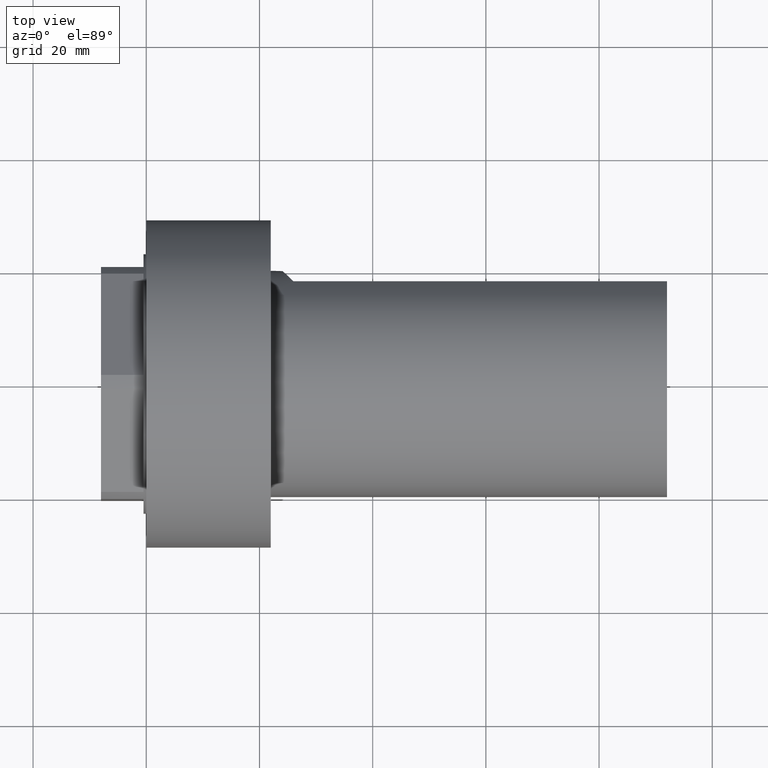
[diagram: clean part render]
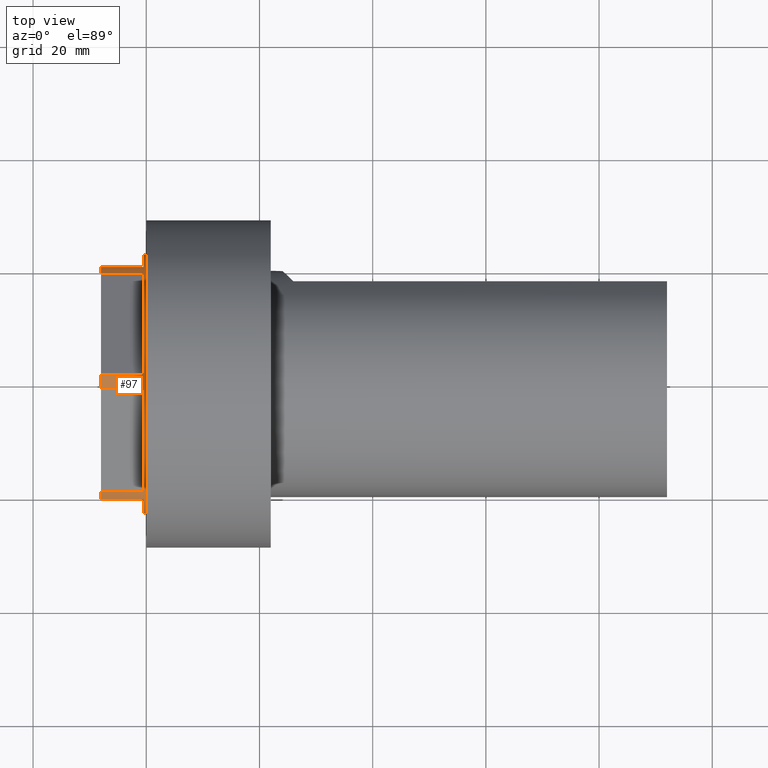
[diagram: same view with one face highlighted and labeled with its STEP entity id]
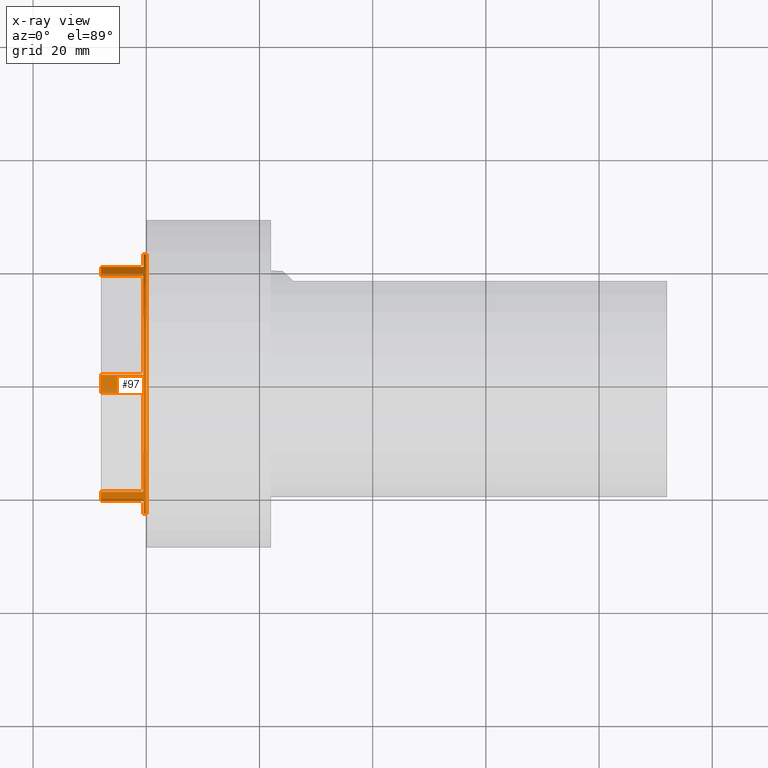
[diagram: x-ray of the same camera — body ghosted, the highlighted face saturated]
A machine part, top view. The second image highlights one B-rep face of the part: STEP entity #97.
The next image is the same camera in x-ray: the body ghosted, the highlighted face saturated — about 14% of this face is hidden behind the body in this view.
In plain terms, the highlighted cylindrical surface (bore or boss wall) has radius 23 mm, axis along (-1, -0, -0).
Its self-contained STEP definition (entity closure, byte-faithful):
#97 = ADVANCED_FACE( '', ( #200, #201 ), #202, .T. );
#200 = FACE_OUTER_BOUND( '', #299, .T. );
#201 = FACE_OUTER_BOUND( '', #300, .T. );
#202 = CYLINDRICAL_SURFACE( '', #301, 23.0000000000000 );
#299 = EDGE_LOOP( '', ( #480, #481, #482, #483, #484, #485, #486, #487, #488, #489, #490, #491, #492, #493, #494, #495, #496, #497, #498, #499, #500, #501, #502, #503 ) );
#300 = EDGE_LOOP( '', ( #504 ) );
#301 = AXIS2_PLACEMENT_3D( '', #505, #506, #507 );
#480 = ORIENTED_EDGE( '', *, *, #589, .F. );
#481 = ORIENTED_EDGE( '', *, *, #577, .F. );
#482 = ORIENTED_EDGE( '', *, *, #588, .T. );
#483 = ORIENTED_EDGE( '', *, *, #542, .T. );
#484 = ORIENTED_EDGE( '', *, *, #593, .F. );
#485 = ORIENTED_EDGE( '', *, *, #534, .F. );
#486 = ORIENTED_EDGE( '', *, *, #592, .T. );
#487 = ORIENTED_EDGE( '', *, *, #540, .T. );
#488 = ORIENTED_EDGE( '', *, *, #532, .F. );
#489 = ORIENTED_EDGE( '', *, *, #585, .F. );
#490 = ORIENTED_EDGE( '', *, *, #530, .T. );
#491 = ORIENTED_EDGE( '', *, *, #539, .T. );
#492 = ORIENTED_EDGE( '', *, *, #571, .F. );
#493 = ORIENTED_EDGE( '', *, *, #526, .F. );
#494 = ORIENTED_EDGE( '', *, *, #570, .T. );
#495 = ORIENTED_EDGE( '', *, *, #537, .T. );
#496 = ORIENTED_EDGE( '', *, *, #596, .F. );
#497 = ORIENTED_EDGE( '', *, *, #564, .F. );
#498 = ORIENTED_EDGE( '', *, *, #595, .T. );
#499 = ORIENTED_EDGE( '', *, *, #546, .T. );
#500 = ORIENTED_EDGE( '', *, *, #575, .F. );
#501 = ORIENTED_EDGE( '', *, *, #599, .F. );
#502 = ORIENTED_EDGE( '', *, *, #573, .T. );
#503 = ORIENTED_EDGE( '', *, *, #544, .T. );
#504 = ORIENTED_EDGE( '', *, *, #551, .F. );
#505 = CARTESIAN_POINT( '', ( 38.3031897014172, 0.000000000000000, 0.000000000000000 ) );
#506 = DIRECTION( '', ( -1.00000000000000, -0.000000000000000, -0.000000000000000 ) );
#507 = DIRECTION( '', ( 0.000000000000000, 0.000000000000000, -1.00000000000000 ) );
#526 = EDGE_CURVE( '', #605, #606, #607, .T. );
#530 = EDGE_CURVE( '', #613, #611, #614, .T. );
#532 = EDGE_CURVE( '', #615, #610, #617, .T. );
#534 = EDGE_CURVE( '', #619, #620, #621, .T. );
#537 = EDGE_CURVE( '', #624, #625, #626, .T. );
#539 = EDGE_CURVE( '', #611, #627, #629, .T. );
#540 = EDGE_CURVE( '', #630, #610, #631, .T. );
#542 = EDGE_CURVE( '', #634, #632, #635, .T. );
#544 = EDGE_CURVE( '', #638, #636, #639, .T. );
#546 = EDGE_CURVE( '', #642, #640, #643, .T. );
#551 = EDGE_CURVE( '', #650, #650, #651, .T. );
#564 = EDGE_CURVE( '', #671, #672, #673, .T. );
#570 = EDGE_CURVE( '', #605, #624, #681, .T. );
#571 = EDGE_CURVE( '', #606, #627, #682, .T. );
#573 = EDGE_CURVE( '', #684, #638, #685, .T. );
#575 = EDGE_CURVE( '', #686, #640, #688, .T. );
#577 = EDGE_CURVE( '', #690, #691, #692, .T. );
#585 = EDGE_CURVE( '', #613, #615, #701, .T. );
#588 = EDGE_CURVE( '', #690, #634, #704, .T. );
#589 = EDGE_CURVE( '', #691, #636, #705, .T. );
#592 = EDGE_CURVE( '', #619, #630, #708, .T. );
#593 = EDGE_CURVE( '', #620, #632, #709, .T. );
#595 = EDGE_CURVE( '', #671, #642, #711, .T. );
#596 = EDGE_CURVE( '', #672, #625, #712, .T. );
#599 = EDGE_CURVE( '', #684, #686, #715, .T. );
#605 = VERTEX_POINT( '', #722 );
#606 = VERTEX_POINT( '', #723 );
#607 = CIRCLE( '', #724, 23.0000000000000 );
#610 = VERTEX_POINT( '', #728 );
#611 = VERTEX_POINT( '', #729 );
#613 = VERTEX_POINT( '', #732 );
#614 = LINE( '', #733, #734 );
#615 = VERTEX_POINT( '', #735 );
#617 = LINE( '', #738, #739 );
#619 = VERTEX_POINT( '', #741 );
#620 = VERTEX_POINT( '', #742 );
#621 = CIRCLE( '', #743, 23.0000000000000 );
#624 = VERTEX_POINT( '', #747 );
#625 = VERTEX_POINT( '', #748 );
#626 = CIRCLE( '', #749, 23.0000000000000 );
#627 = VERTEX_POINT( '', #750 );
#629 = CIRCLE( '', #753, 23.0000000000000 );
#630 = VERTEX_POINT( '', #754 );
#631 = CIRCLE( '', #755, 23.0000000000000 );
#632 = VERTEX_POINT( '', #756 );
#634 = VERTEX_POINT( '', #759 );
#635 = CIRCLE( '', #760, 23.0000000000000 );
#636 = VERTEX_POINT( '', #761 );
#638 = VERTEX_POINT( '', #764 );
#639 = CIRCLE( '', #765, 23.0000000000000 );
#640 = VERTEX_POINT( '', #766 );
#642 = VERTEX_POINT( '', #769 );
#643 = CIRCLE( '', #770, 23.0000000000000 );
#650 = VERTEX_POINT( '', #778 );
#651 = CIRCLE( '', #779, 23.0000000000000 );
#671 = VERTEX_POINT( '', #801 );
#672 = VERTEX_POINT( '', #802 );
#673 = CIRCLE( '', #803, 23.0000000000000 );
#681 = LINE( '', #812, #813 );
#682 = LINE( '', #814, #815 );
#684 = VERTEX_POINT( '', #817 );
#685 = LINE( '', #818, #819 );
#686 = VERTEX_POINT( '', #820 );
#688 = LINE( '', #823, #824 );
#690 = VERTEX_POINT( '', #826 );
#691 = VERTEX_POINT( '', #827 );
#692 = CIRCLE( '', #828, 23.0000000000000 );
#701 = CIRCLE( '', #840, 23.0000000000000 );
#704 = LINE( '', #843, #844 );
#705 = LINE( '', #845, #846 );
#708 = LINE( '', #849, #850 );
#709 = LINE( '', #851, #852 );
#711 = LINE( '', #854, #855 );
#712 = LINE( '', #856, #857 );
#715 = CIRCLE( '', #860, 23.0000000000000 );
#722 = CARTESIAN_POINT( '', ( -0.500000000000007, -1.21880406590578, -22.9676841812345 ) );
#723 = CARTESIAN_POINT( '', ( -0.500000000000007, -19.2811959340942, -12.5393573739275 ) );
#724 = AXIS2_PLACEMENT_3D( '', #866, #867, #868 );
#728 = CARTESIAN_POINT( '', ( -8.00000000000000, -20.5000000000000, 10.4283268073071 ) );
#729 = CARTESIAN_POINT( '', ( -8.00000000000000, -20.5000000000000, -10.4283268073071 ) );
#732 = CARTESIAN_POINT( '', ( -0.500000000000007, -20.5000000000000, -10.4283268073071 ) );
#733 = CARTESIAN_POINT( '', ( -0.500000000000007, -20.5000000000000, -10.4283268073071 ) );
#734 = VECTOR( '', #871, 1000.00000000000 );
#735 = CARTESIAN_POINT( '', ( -0.500000000000007, -20.5000000000000, 10.4283268073071 ) );
#738 = CARTESIAN_POINT( '', ( -0.500000000000007, -20.5000000000000, 10.4283268073071 ) );
#739 = VECTOR( '', #873, 1000.00000000000 );
#741 = CARTESIAN_POINT( '', ( -0.500000000000007, -19.2811959340942, 12.5393573739274 ) );
#742 = CARTESIAN_POINT( '', ( -0.500000000000007, -1.21880406590584, 22.9676841812345 ) );
#743 = AXIS2_PLACEMENT_3D( '', #874, #875, #876 );
#747 = CARTESIAN_POINT( '', ( -8.00000000000000, -1.21880406590578, -22.9676841812345 ) );
#748 = CARTESIAN_POINT( '', ( -8.00000000000000, 1.21880406590578, -22.9676841812345 ) );
#749 = AXIS2_PLACEMENT_3D( '', #878, #879, #880 );
#750 = CARTESIAN_POINT( '', ( -8.00000000000000, -19.2811959340942, -12.5393573739275 ) );
#753 = AXIS2_PLACEMENT_3D( '', #882, #883, #884 );
#754 = CARTESIAN_POINT( '', ( -8.00000000000000, -19.2811959340942, 12.5393573739274 ) );
#755 = AXIS2_PLACEMENT_3D( '', #885, #886, #887 );
#756 = CARTESIAN_POINT( '', ( -8.00000000000000, -1.21880406590584, 22.9676841812345 ) );
#759 = CARTESIAN_POINT( '', ( -8.00000000000000, 1.21880406590579, 22.9676841812345 ) );
#760 = AXIS2_PLACEMENT_3D( '', #889, #890, #891 );
#761 = CARTESIAN_POINT( '', ( -8.00000000000000, 19.2811959340942, 12.5393573739275 ) );
#764 = CARTESIAN_POINT( '', ( -8.00000000000000, 20.5000000000000, 10.4283268073071 ) );
#765 = AXIS2_PLACEMENT_3D( '', #893, #894, #895 );
#766 = CARTESIAN_POINT( '', ( -8.00000000000000, 20.5000000000000, -10.4283268073070 ) );
#769 = CARTESIAN_POINT( '', ( -8.00000000000000, 19.2811959340942, -12.5393573739274 ) );
#770 = AXIS2_PLACEMENT_3D( '', #897, #898, #899 );
#778 = CARTESIAN_POINT( '', ( 6.93889390390723E-015, 0.000000000000000, -23.0000000000000 ) );
#779 = AXIS2_PLACEMENT_3D( '', #907, #908, #909 );
#801 = CARTESIAN_POINT( '', ( -0.500000000000007, 19.2811959340942, -12.5393573739274 ) );
#802 = CARTESIAN_POINT( '', ( -0.500000000000007, 1.21880406590578, -22.9676841812345 ) );
#803 = AXIS2_PLACEMENT_3D( '', #927, #928, #929 );
#812 = CARTESIAN_POINT( '', ( -0.500000000000007, -1.21880406590578, -22.9676841812345 ) );
#813 = VECTOR( '', #937, 1000.00000000000 );
#814 = CARTESIAN_POINT( '', ( -0.500000000000007, -19.2811959340942, -12.5393573739275 ) );
#815 = VECTOR( '', #938, 1000.00000000000 );
#817 = CARTESIAN_POINT( '', ( -0.500000000000007, 20.5000000000000, 10.4283268073071 ) );
#818 = CARTESIAN_POINT( '', ( -0.500000000000007, 20.5000000000000, 10.4283268073071 ) );
#819 = VECTOR( '', #939, 1000.00000000000 );
#820 = CARTESIAN_POINT( '', ( -0.500000000000007, 20.5000000000000, -10.4283268073070 ) );
#823 = CARTESIAN_POINT( '', ( -0.500000000000007, 20.5000000000000, -10.4283268073070 ) );
#824 = VECTOR( '', #941, 1000.00000000000 );
#826 = CARTESIAN_POINT( '', ( -0.500000000000007, 1.21880406590579, 22.9676841812345 ) );
#827 = CARTESIAN_POINT( '', ( -0.500000000000007, 19.2811959340942, 12.5393573739275 ) );
#828 = AXIS2_PLACEMENT_3D( '', #942, #943, #944 );
#840 = AXIS2_PLACEMENT_3D( '', #951, #952, #953 );
#843 = CARTESIAN_POINT( '', ( -0.500000000000007, 1.21880406590579, 22.9676841812345 ) );
#844 = VECTOR( '', #954, 1000.00000000000 );
#845 = CARTESIAN_POINT( '', ( -0.500000000000007, 19.2811959340942, 12.5393573739275 ) );
#846 = VECTOR( '', #955, 1000.00000000000 );
#849 = CARTESIAN_POINT( '', ( -0.500000000000007, -19.2811959340942, 12.5393573739274 ) );
#850 = VECTOR( '', #956, 1000.00000000000 );
#851 = CARTESIAN_POINT( '', ( -0.500000000000007, -1.21880406590584, 22.9676841812345 ) );
#852 = VECTOR( '', #957, 1000.00000000000 );
#854 = CARTESIAN_POINT( '', ( -0.500000000000007, 19.2811959340942, -12.5393573739274 ) );
#855 = VECTOR( '', #958, 1000.00000000000 );
#856 = CARTESIAN_POINT( '', ( -0.500000000000007, 1.21880406590578, -22.9676841812345 ) );
#857 = VECTOR( '', #959, 1000.00000000000 );
#860 = AXIS2_PLACEMENT_3D( '', #960, #961, #962 );
#866 = CARTESIAN_POINT( '', ( -0.500000000000007, 0.000000000000000, 0.000000000000000 ) );
#867 = DIRECTION( '', ( -1.00000000000000, 0.000000000000000, 0.000000000000000 ) );
#868 = DIRECTION( '', ( 0.000000000000000, 0.000000000000000, 1.00000000000000 ) );
#871 = DIRECTION( '', ( -1.00000000000000, 0.000000000000000, 0.000000000000000 ) );
#873 = DIRECTION( '', ( -1.00000000000000, 0.000000000000000, 0.000000000000000 ) );
#874 = CARTESIAN_POINT( '', ( -0.500000000000007, 0.000000000000000, 0.000000000000000 ) );
#875 = DIRECTION( '', ( -1.00000000000000, 0.000000000000000, 0.000000000000000 ) );
#876 = DIRECTION( '', ( 0.000000000000000, 0.000000000000000, 1.00000000000000 ) );
#878 = CARTESIAN_POINT( '', ( -8.00000000000000, 0.000000000000000, 0.000000000000000 ) );
#879 = DIRECTION( '', ( 1.00000000000000, 0.000000000000000, 0.000000000000000 ) );
#880 = DIRECTION( '', ( 0.000000000000000, 0.000000000000000, -1.00000000000000 ) );
#882 = CARTESIAN_POINT( '', ( -8.00000000000000, 0.000000000000000, 0.000000000000000 ) );
#883 = DIRECTION( '', ( 1.00000000000000, 0.000000000000000, 0.000000000000000 ) );
#884 = DIRECTION( '', ( 0.000000000000000, 0.000000000000000, -1.00000000000000 ) );
#885 = CARTESIAN_POINT( '', ( -8.00000000000000, 0.000000000000000, 0.000000000000000 ) );
#886 = DIRECTION( '', ( 1.00000000000000, 0.000000000000000, 0.000000000000000 ) );
#887 = DIRECTION( '', ( 0.000000000000000, 0.000000000000000, -1.00000000000000 ) );
#889 = CARTESIAN_POINT( '', ( -8.00000000000000, 0.000000000000000, 0.000000000000000 ) );
#890 = DIRECTION( '', ( 1.00000000000000, 0.000000000000000, 0.000000000000000 ) );
#891 = DIRECTION( '', ( 0.000000000000000, 0.000000000000000, -1.00000000000000 ) );
#893 = CARTESIAN_POINT( '', ( -8.00000000000000, 0.000000000000000, 0.000000000000000 ) );
#894 = DIRECTION( '', ( 1.00000000000000, 0.000000000000000, 0.000000000000000 ) );
#895 = DIRECTION( '', ( 0.000000000000000, 0.000000000000000, -1.00000000000000 ) );
#897 = CARTESIAN_POINT( '', ( -8.00000000000000, 0.000000000000000, 0.000000000000000 ) );
#898 = DIRECTION( '', ( 1.00000000000000, 0.000000000000000, 0.000000000000000 ) );
#899 = DIRECTION( '', ( 0.000000000000000, 0.000000000000000, -1.00000000000000 ) );
#907 = CARTESIAN_POINT( '', ( 6.93889390390723E-015, 0.000000000000000, 0.000000000000000 ) );
#908 = DIRECTION( '', ( 1.00000000000000, 0.000000000000000, 0.000000000000000 ) );
#909 = DIRECTION( '', ( 0.000000000000000, 0.000000000000000, -1.00000000000000 ) );
#927 = CARTESIAN_POINT( '', ( -0.500000000000007, 0.000000000000000, 0.000000000000000 ) );
#928 = DIRECTION( '', ( -1.00000000000000, 0.000000000000000, 0.000000000000000 ) );
#929 = DIRECTION( '', ( 0.000000000000000, 0.000000000000000, 1.00000000000000 ) );
#937 = DIRECTION( '', ( -1.00000000000000, 0.000000000000000, 0.000000000000000 ) );
#938 = DIRECTION( '', ( -1.00000000000000, 0.000000000000000, 0.000000000000000 ) );
#939 = DIRECTION( '', ( -1.00000000000000, 0.000000000000000, 0.000000000000000 ) );
#941 = DIRECTION( '', ( -1.00000000000000, 0.000000000000000, 0.000000000000000 ) );
#942 = CARTESIAN_POINT( '', ( -0.500000000000007, 0.000000000000000, 0.000000000000000 ) );
#943 = DIRECTION( '', ( -1.00000000000000, 0.000000000000000, 0.000000000000000 ) );
#944 = DIRECTION( '', ( 0.000000000000000, 0.000000000000000, 1.00000000000000 ) );
#951 = CARTESIAN_POINT( '', ( -0.500000000000007, 0.000000000000000, 0.000000000000000 ) );
#952 = DIRECTION( '', ( -1.00000000000000, 0.000000000000000, 0.000000000000000 ) );
#953 = DIRECTION( '', ( 0.000000000000000, 0.000000000000000, 1.00000000000000 ) );
#954 = DIRECTION( '', ( -1.00000000000000, 0.000000000000000, 0.000000000000000 ) );
#955 = DIRECTION( '', ( -1.00000000000000, 0.000000000000000, 0.000000000000000 ) );
#956 = DIRECTION( '', ( -1.00000000000000, 0.000000000000000, 0.000000000000000 ) );
#957 = DIRECTION( '', ( -1.00000000000000, 0.000000000000000, 0.000000000000000 ) );
#958 = DIRECTION( '', ( -1.00000000000000, 0.000000000000000, 0.000000000000000 ) );
#959 = DIRECTION( '', ( -1.00000000000000, 0.000000000000000, 0.000000000000000 ) );
#960 = CARTESIAN_POINT( '', ( -0.500000000000007, 0.000000000000000, 0.000000000000000 ) );
#961 = DIRECTION( '', ( -1.00000000000000, 0.000000000000000, 0.000000000000000 ) );
#962 = DIRECTION( '', ( 0.000000000000000, 0.000000000000000, 1.00000000000000 ) );